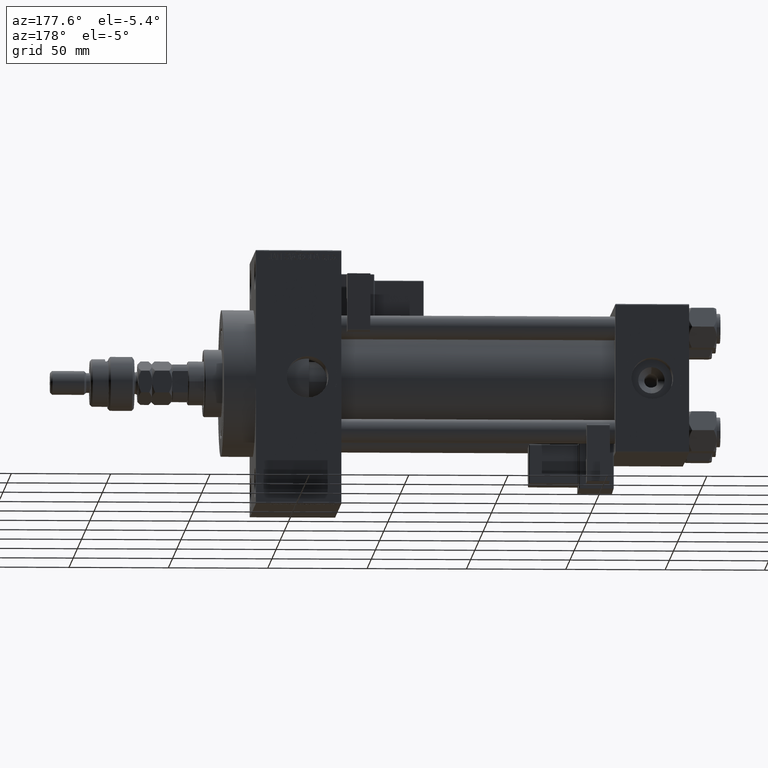
[diagram: clean part render]
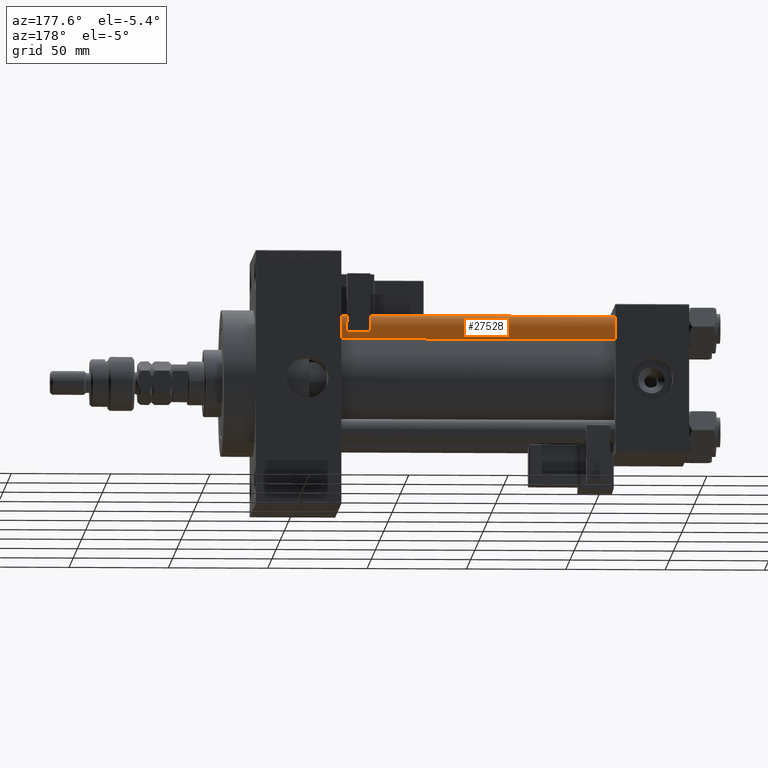
[diagram: same view with one face highlighted and labeled with its STEP entity id]
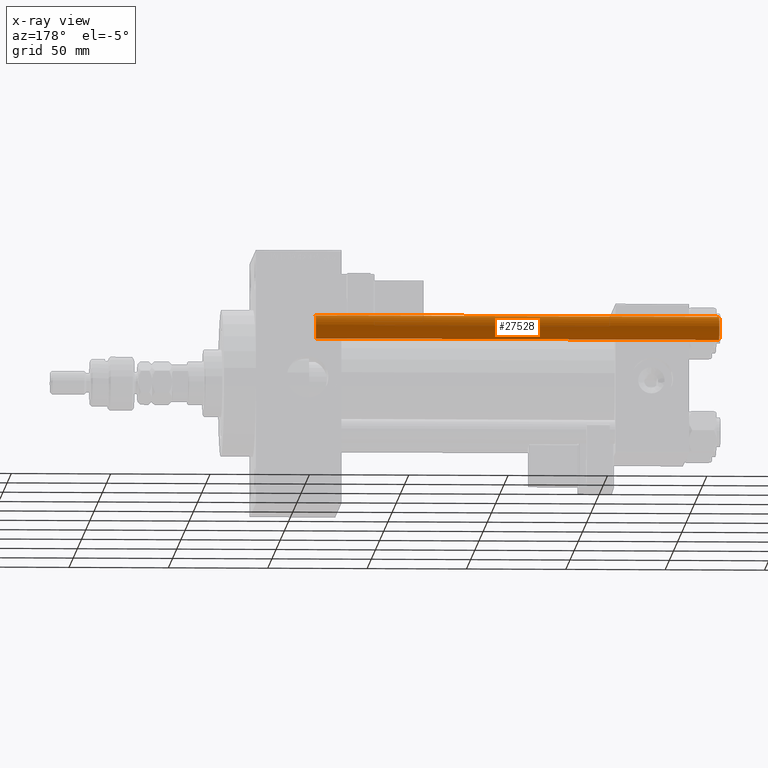
[diagram: x-ray of the same camera — body ghosted, the highlighted face saturated]
A machine part, auxiliary view. The second image highlights one B-rep face of the part: STEP entity #27528.
The next image is the same camera in x-ray: the body ghosted, the highlighted face saturated — about 0% of this face is hidden behind the body in this view.
In plain terms, the highlighted cylindrical surface (edge-blend (fillet) strip) has radius 6 mm, axis along (-1, -0, 0).
Its self-contained STEP definition (entity closure, byte-faithful):
#422 = CARTESIAN_POINT ( 'NONE',  ( 6.000000000000000888, 7.347880794884120722E-16, 203.5000000000000000 ) ) ;
#1394 = DIRECTION ( 'NONE',  ( -0.000000000000000000, -0.000000000000000000, -1.000000000000000000 ) ) ;
#2297 = CARTESIAN_POINT ( 'NONE',  ( 6.000000000000000888, 7.347880794884120722E-16, 204.0000000000000000 ) ) ;
#2555 = CARTESIAN_POINT ( 'NONE',  ( -6.000000000000000888, 0.000000000000000000, 203.5000000000000000 ) ) ;
#3216 = ORIENTED_EDGE ( 'NONE', *, *, #49377, .T. ) ;
#4417 = CARTESIAN_POINT ( 'NONE',  ( 6.000000000000000888, 7.347880794884120722E-16, 0.5000000000000281997 ) ) ;
#4946 = DIRECTION ( 'NONE',  ( 1.000000000000000000, 0.000000000000000000, 0.000000000000000000 ) ) ;
#6589 = EDGE_CURVE ( 'NONE', #46784, #50489, #34399, .T. ) ;
#6662 = VERTEX_POINT ( 'NONE', #32500 ) ;
#8304 = CIRCLE ( 'NONE', #27755, 6.000000000000000888 ) ;
#10509 = DIRECTION ( 'NONE',  ( -0.000000000000000000, -0.000000000000000000, -1.000000000000000000 ) ) ;
#11102 = AXIS2_PLACEMENT_3D ( 'NONE', #30209, #26733, #23026 ) ;
#13189 = EDGE_LOOP ( 'NONE', ( #25001, #28329, #3216, #43544 ) ) ;
#17578 = CARTESIAN_POINT ( 'NONE',  ( -6.000000000000000888, 0.000000000000000000, 204.0000000000000000 ) ) ;
#17972 = EDGE_CURVE ( 'NONE', #33358, #46784, #8304, .T. ) ;
#22380 = CIRCLE ( 'NONE', #51146, 6.000000000000000888 ) ;
#22877 = CARTESIAN_POINT ( 'NONE',  ( 0.000000000000000000, 0.000000000000000000, 203.5000000000000000 ) ) ;
#23026 = DIRECTION ( 'NONE',  ( -1.000000000000000000, 0.000000000000000000, 0.000000000000000000 ) ) ;
#23937 = FACE_OUTER_BOUND ( 'NONE', #13189, .T. ) ;
#25001 = ORIENTED_EDGE ( 'NONE', *, *, #17972, .T. ) ;
#25657 = DIRECTION ( 'NONE',  ( 1.000000000000000000, 0.000000000000000000, 0.000000000000000000 ) ) ;
#25781 = LINE ( 'NONE', #17578, #46069 ) ;
#26733 = DIRECTION ( 'NONE',  ( -0.000000000000000000, -0.000000000000000000, -1.000000000000000000 ) ) ;
#26890 = DIRECTION ( 'NONE',  ( -0.000000000000000000, -0.000000000000000000, 1.000000000000000000 ) ) ;
#27528 = ADVANCED_FACE ( 'NONE', ( #23937 ), #40111, .T. ) ;
#27755 = AXIS2_PLACEMENT_3D ( 'NONE', #22877, #37829, #4946 ) ;
#28329 = ORIENTED_EDGE ( 'NONE', *, *, #6589, .T. ) ;
#30209 = CARTESIAN_POINT ( 'NONE',  ( 0.000000000000000000, 0.000000000000000000, 204.0000000000000000 ) ) ;
#32500 = CARTESIAN_POINT ( 'NONE',  ( -6.000000000000000888, 0.000000000000000000, 0.5000000000000281997 ) ) ;
#33358 = VERTEX_POINT ( 'NONE', #2555 ) ;
#34399 = LINE ( 'NONE', #2297, #43105 ) ;
#37829 = DIRECTION ( 'NONE',  ( 0.000000000000000000, 0.000000000000000000, -1.000000000000000000 ) ) ;
#40111 = CYLINDRICAL_SURFACE ( 'NONE', #11102, 6.000000000000000888 ) ;
#42827 = CARTESIAN_POINT ( 'NONE',  ( 0.000000000000000000, 0.000000000000000000, 0.5000000000000281997 ) ) ;
#43105 = VECTOR ( 'NONE', #10509, 1000.000000000000000 ) ;
#43544 = ORIENTED_EDGE ( 'NONE', *, *, #48829, .F. ) ;
#46069 = VECTOR ( 'NONE', #1394, 1000.000000000000000 ) ;
#46784 = VERTEX_POINT ( 'NONE', #422 ) ;
#48829 = EDGE_CURVE ( 'NONE', #33358, #6662, #25781, .T. ) ;
#49377 = EDGE_CURVE ( 'NONE', #50489, #6662, #22380, .T. ) ;
#50489 = VERTEX_POINT ( 'NONE', #4417 ) ;
#51146 = AXIS2_PLACEMENT_3D ( 'NONE', #42827, #26890, #25657 ) ;